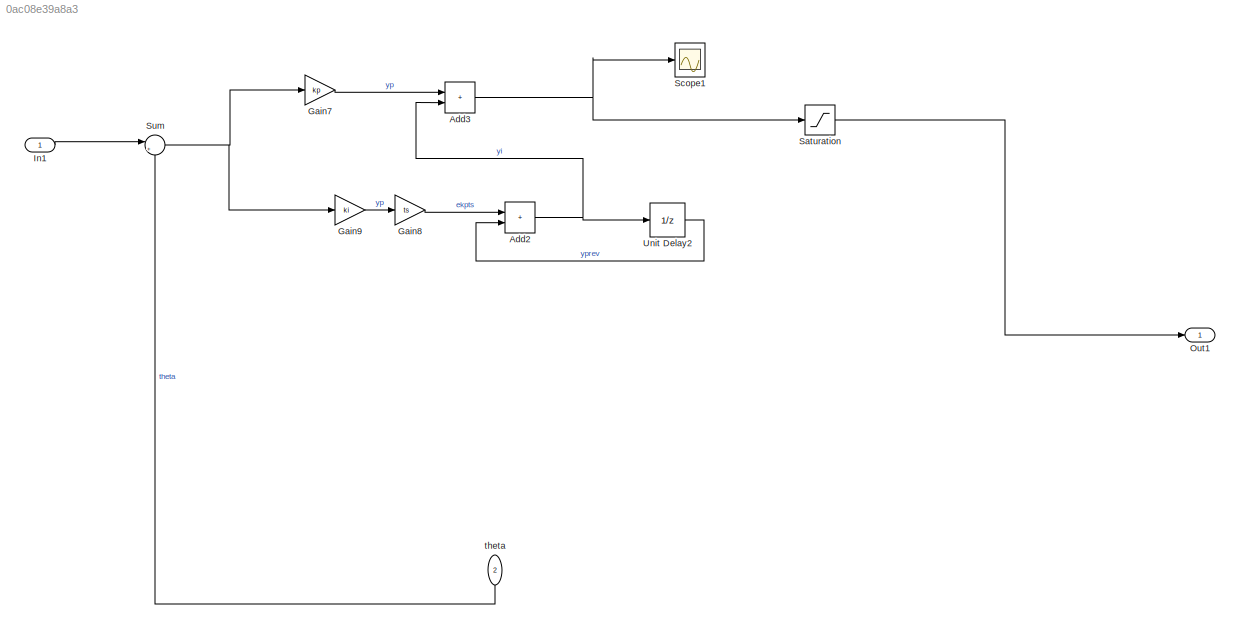
MODEL slx_0ac08e39a8a3
KIND model
CONFIG AbsTol = auto
CONFIG EnableMultiTasking = off
CONFIG FixedStep = auto
CONFIG MaxStep = auto
CONFIG MinStep = auto
CONFIG RelTol = 1e-3
CONFIG SampleTimeConstraint = Unconstrained
CONFIG SolverName = ode15s
CONFIG StartTime = 0.0
CONFIG StopTime = 10.0
WORKSPACE source: mxarray member
WORKSPACE ki = 7.33
WORKSPACE kp = 9.39
WORKSPACE ts = 0.01
WORKSPACE v = 7.4
BLOCK [Sum] Add2
  IconShape = rectangular
BLOCK [Sum] Add3
  IconShape = rectangular
BLOCK [Gain] Gain7
  Gain = kp
BLOCK [Gain] Gain8
  Gain = ts
BLOCK [Gain] Gain9
  Gain = ki
BLOCK [Inport] In1
  OutDataTypeStr = double
  PortDimensions = 1
  SamplingMode = Sample based
  SignalType = real
BLOCK [Outport] Out1
  OutDataTypeStr = double
  PortDimensions = 1
  SampleTime = 0
  SamplingMode = Sample based
  SignalType = real
BLOCK [Saturate] Saturation
  LowerLimit = -v
  UpperLimit = v
BLOCK [Scope] Scope1
  Floating = off
  NumInputPorts = 1
  ScopeSpecificationString = Simulink.scopes.TimeScopeBlockCfg('CurrentConfiguration', extmgr.ConfigurationSet(extmgr.Configuration('Core','General UI',true),extmgr.Configuration('Core','Source UI',true),extmgr.Configuration('Sources','WiredSimulink',true),extmgr.Configuration('Visuals','Time Domain',true,'SerializedDisplays',{struct('MinYLimReal','-1.04106','MaxYLimReal','8.94966','YLabelReal','','MinYLimMag','0.00000','MaxY...<+2194ch>
BLOCK [Sum] Sum
  Inputs = |+-
BLOCK [UnitDelay] Unit Delay2
  HasFrameUpgradeWarning = on
  SampleTime = ts
BLOCK [Inport] theta
  NameLocation = left
  OutDataTypeStr = double
  Port = 2
  PortDimensions = 1
  SampleTime = 0
  SamplingMode = Sample based
  SignalType = real
NET Add2:1 -> Add3:2, Unit Delay2:1
NET Add3:1 -> Saturation:1, Scope1:1
LINE Gain7:1 -> Add3:1
LINE Gain8:1 -> Add2:1
LINE Gain9:1 -> Gain8:1
LINE In1:1 -> Sum:1
LINE Saturation:1 -> Out1:1
NET Sum:1 -> Gain7:1, Gain9:1
LINE Unit Delay2:1 -> Add2:2
LINE theta:1 -> Sum:2
note: NET lines group one-source signal fan-out (src -> all destinations, sorted); 1:1 wires keep LINE
